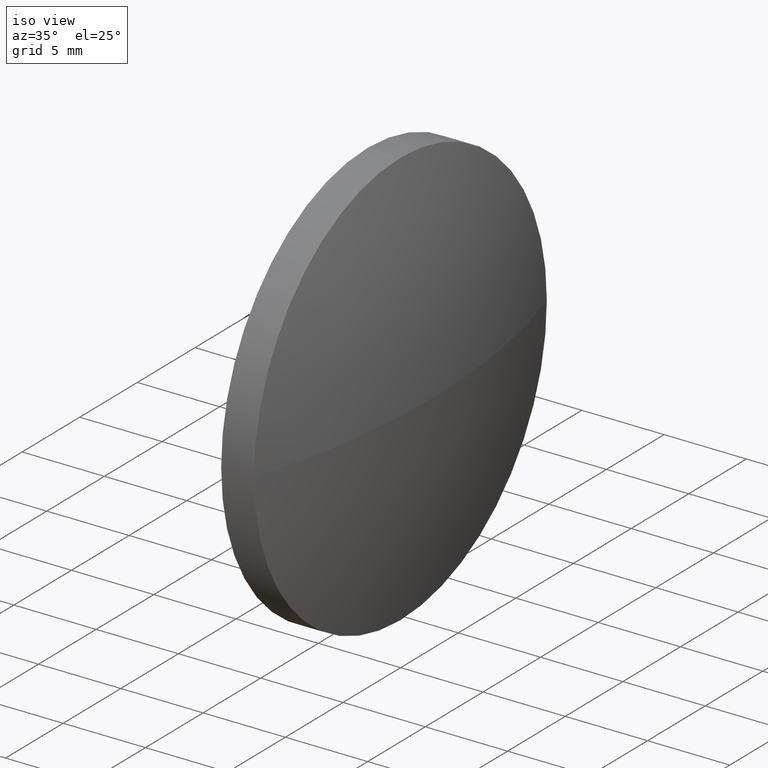
[diagram: clean part render]
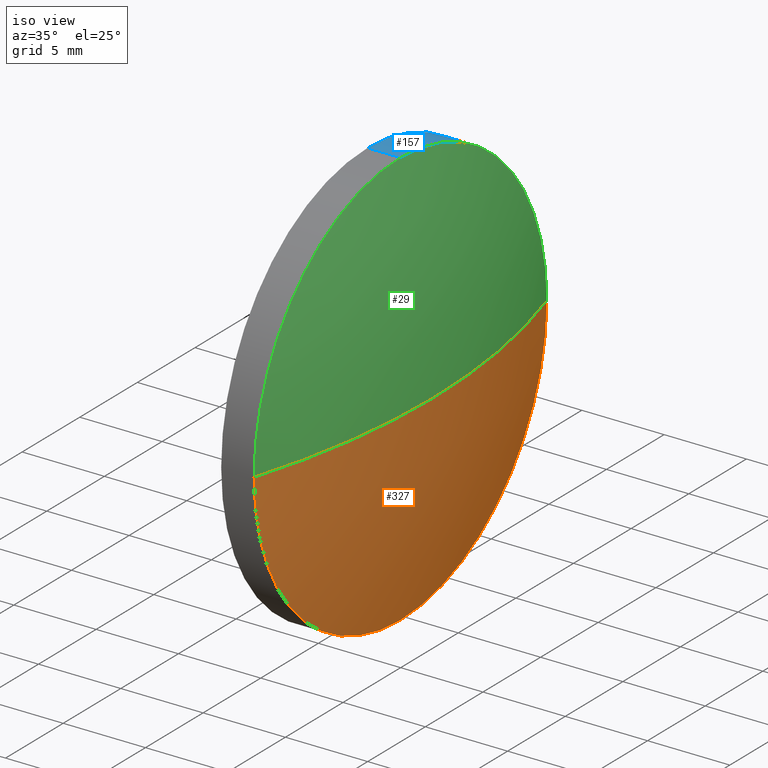
[diagram: same view with three faces highlighted in distinct colors, each labeled with its STEP entity id]
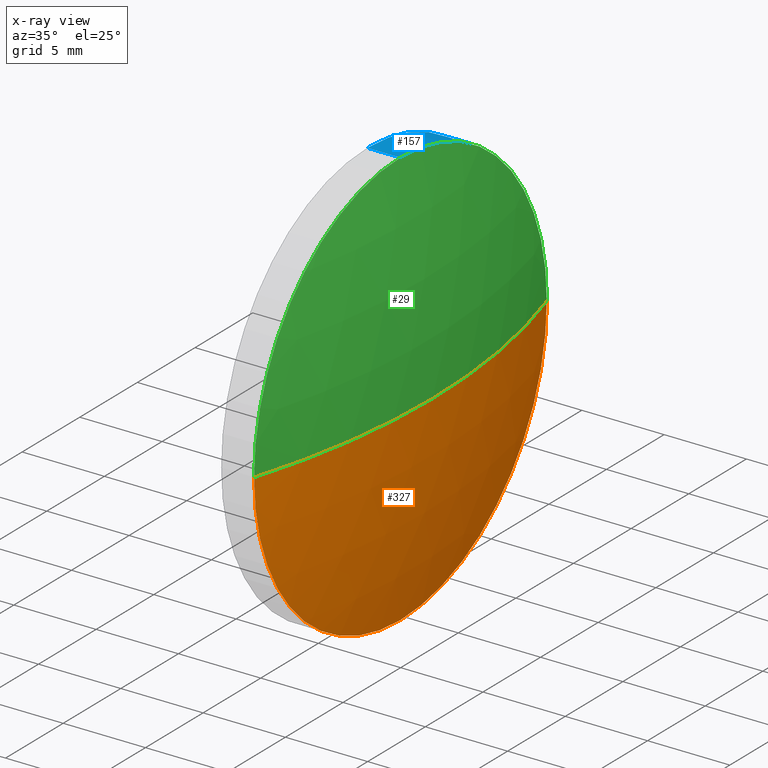
[diagram: x-ray of the same camera — body ghosted, the three highlighted faces saturated]
A machine part, iso view with three faces highlighted in distinct colors.
The next image is the same camera in x-ray (body ghosted, the three faces saturated) — at least one of them is partly hidden behind the body in this view.
Their STEP definitions:

[orange] entity #327 — the highlighted spherical surface has radius 42.3248 mm.
#6 = VERTEX_POINT ( 'NONE', #331 ) ;
#7 = DIRECTION ( 'NONE',  ( -1.000000000000000000, -0.0000000000000000000, -0.0000000000000000000 ) ) ;
#21 = SPHERICAL_SURFACE ( 'NONE', #81, 42.32476693287840400 ) ;
#22 = ORIENTED_EDGE ( 'NONE', *, *, #204, .F. ) ;
#30 = AXIS2_PLACEMENT_3D ( 'NONE', #170, #125, #259 ) ;
#37 = AXIS2_PLACEMENT_3D ( 'NONE', #197, #43, #317 ) ;
#43 = DIRECTION ( 'NONE',  ( -1.000000000000000000, -0.0000000000000000000, -0.0000000000000000000 ) ) ;
#50 = VERTEX_POINT ( 'NONE', #161 ) ;
#81 = AXIS2_PLACEMENT_3D ( 'NONE', #250, #257, #133 ) ;
#89 = FACE_OUTER_BOUND ( 'NONE', #90, .T. ) ;
#90 = EDGE_LOOP ( 'NONE', ( #216, #278, #22, #183 ) ) ;
#94 = CARTESIAN_POINT ( 'NONE',  ( 87.45786520323396500, 61.31611302318477600, 0.0000000000000000000 ) ) ;
#101 = VERTEX_POINT ( 'NONE', #94 ) ;
#113 = CARTESIAN_POINT ( 'NONE',  ( 87.45786520323396500, 48.61611302318478100, 0.0000000000000000000 ) ) ;
#125 = DIRECTION ( 'NONE',  ( -0.0000000000000000000, 0.0000000000000000000, 1.000000000000000000 ) ) ;
#131 = EDGE_CURVE ( 'NONE', #135, #50, #150, .T. ) ;
#133 = DIRECTION ( 'NONE',  ( 0.0000000000000000000, 1.000000000000000000, 0.0000000000000000000 ) ) ;
#135 = VERTEX_POINT ( 'NONE', #144 ) ;
#144 = CARTESIAN_POINT ( 'NONE',  ( 89.40818606037683500, 48.61611302318478100, 0.0000000000000000000 ) ) ;
#150 = CIRCLE ( 'NONE', #236, 42.32476693287840400 ) ;
#161 = CARTESIAN_POINT ( 'NONE',  ( 87.45786520323396500, 35.91611302318478500, -1.555301434917138400E-015 ) ) ;
#170 = CARTESIAN_POINT ( 'NONE',  ( 47.08341912749842400, 48.61611302318478100, 0.0000000000000000000 ) ) ;
#183 = ORIENTED_EDGE ( 'NONE', *, *, #226, .F. ) ;
#194 = DIRECTION ( 'NONE',  ( 0.0000000000000000000, 1.224646799147353200E-016, -1.000000000000000000 ) ) ;
#196 = CIRCLE ( 'NONE', #30, 42.32476693287840400 ) ;
#197 = CARTESIAN_POINT ( 'NONE',  ( 87.45786520323396500, 48.61611302318478100, 0.0000000000000000000 ) ) ;
#204 = EDGE_CURVE ( 'NONE', #6, #50, #231, .T. ) ;
#216 = ORIENTED_EDGE ( 'NONE', *, *, #245, .F. ) ;
#226 = EDGE_CURVE ( 'NONE', #101, #6, #270, .T. ) ;
#231 = CIRCLE ( 'NONE', #37, 12.69999999999999600 ) ;
#236 = AXIS2_PLACEMENT_3D ( 'NONE', #336, #194, #334 ) ;
#245 = EDGE_CURVE ( 'NONE', #135, #101, #196, .T. ) ;
#250 = CARTESIAN_POINT ( 'NONE',  ( 47.08341912749842400, 48.61611302318478100, 0.0000000000000000000 ) ) ;
#257 = DIRECTION ( 'NONE',  ( -0.0000000000000000000, 0.0000000000000000000, -1.000000000000000000 ) ) ;
#259 = DIRECTION ( 'NONE',  ( 1.000000000000000000, 0.0000000000000000000, 0.0000000000000000000 ) ) ;
#270 = CIRCLE ( 'NONE', #303, 12.69999999999999600 ) ;
#278 = ORIENTED_EDGE ( 'NONE', *, *, #131, .T. ) ;
#303 = AXIS2_PLACEMENT_3D ( 'NONE', #113, #7, #305 ) ;
#305 = DIRECTION ( 'NONE',  ( 0.0000000000000000000, 0.0000000000000000000, 1.000000000000000000 ) ) ;
#317 = DIRECTION ( 'NONE',  ( 0.0000000000000000000, 0.0000000000000000000, 1.000000000000000000 ) ) ;
#327 = ADVANCED_FACE ( 'NONE', ( #89 ), #21, .T. ) ;
#331 = CARTESIAN_POINT ( 'NONE',  ( 87.45786520323396500, 48.61611302318478100, -12.69999999999999600 ) ) ;
#334 = DIRECTION ( 'NONE',  ( 0.0000000000000000000, 1.000000000000000000, 1.224646799147353500E-016 ) ) ;
#336 = CARTESIAN_POINT ( 'NONE',  ( 47.08341912749842400, 48.61611302318478100, 0.0000000000000000000 ) ) ;

[blue] entity #157 — the highlighted cylindrical surface (partial cylindrical patch) has radius 12.7 mm, axis along (-1, -0, -0).
#6 = VERTEX_POINT ( 'NONE', #331 ) ;
#7 = DIRECTION ( 'NONE',  ( -1.000000000000000000, -0.0000000000000000000, -0.0000000000000000000 ) ) ;
#13 = CARTESIAN_POINT ( 'NONE',  ( 87.45786520323396500, 48.61611302318478100, 0.0000000000000000000 ) ) ;
#16 = CIRCLE ( 'NONE', #179, 12.69999999999999600 ) ;
#20 = DIRECTION ( 'NONE',  ( -1.000000000000000000, -0.0000000000000000000, -0.0000000000000000000 ) ) ;
#36 = ORIENTED_EDGE ( 'NONE', *, *, #184, .F. ) ;
#55 = CIRCLE ( 'NONE', #140, 12.69999999999999600 ) ;
#65 = VERTEX_POINT ( 'NONE', #246 ) ;
#67 = DIRECTION ( 'NONE',  ( -1.000000000000000000, -0.0000000000000000000, -0.0000000000000000000 ) ) ;
#72 = EDGE_CURVE ( 'NONE', #65, #101, #192, .T. ) ;
#85 = ORIENTED_EDGE ( 'NONE', *, *, #226, .T. ) ;
#92 = CARTESIAN_POINT ( 'NONE',  ( 85.45852234609111500, 48.61611302318478100, 12.69999999999999600 ) ) ;
#94 = CARTESIAN_POINT ( 'NONE',  ( 87.45786520323396500, 61.31611302318477600, 0.0000000000000000000 ) ) ;
#95 = DIRECTION ( 'NONE',  ( 0.0000000000000000000, 0.0000000000000000000, 1.000000000000000000 ) ) ;
#100 = CYLINDRICAL_SURFACE ( 'NONE', #318, 12.69999999999999600 ) ;
#101 = VERTEX_POINT ( 'NONE', #94 ) ;
#109 = EDGE_CURVE ( 'NONE', #224, #193, #55, .T. ) ;
#113 = CARTESIAN_POINT ( 'NONE',  ( 87.45786520323396500, 48.61611302318478100, 0.0000000000000000000 ) ) ;
#116 = CARTESIAN_POINT ( 'NONE',  ( 85.45852234609111500, 48.61611302318478100, -12.69999999999999600 ) ) ;
#117 = CARTESIAN_POINT ( 'NONE',  ( 85.45852234609111500, 48.61611302318478100, 0.0000000000000000000 ) ) ;
#121 = DIRECTION ( 'NONE',  ( -1.000000000000000000, -0.0000000000000000000, -0.0000000000000000000 ) ) ;
#122 = EDGE_CURVE ( 'NONE', #187, #224, #16, .T. ) ;
#134 = CARTESIAN_POINT ( 'NONE',  ( 85.45852234609111500, 61.31611302318476200, 0.0000000000000000000 ) ) ;
#140 = AXIS2_PLACEMENT_3D ( 'NONE', #117, #252, #168 ) ;
#142 = DIRECTION ( 'NONE',  ( -1.000000000000000000, -0.0000000000000000000, -0.0000000000000000000 ) ) ;
#157 = ADVANCED_FACE ( 'NONE', ( #265 ), #100, .T. ) ;
#159 = VECTOR ( 'NONE', #20, 1000.000000000000000 ) ;
#165 = EDGE_LOOP ( 'NONE', ( #85, #272, #320, #203, #36, #221 ) ) ;
#168 = DIRECTION ( 'NONE',  ( 0.0000000000000000000, 0.0000000000000000000, 1.000000000000000000 ) ) ;
#179 = AXIS2_PLACEMENT_3D ( 'NONE', #225, #142, #283 ) ;
#184 = EDGE_CURVE ( 'NONE', #65, #187, #247, .T. ) ;
#186 = VECTOR ( 'NONE', #310, 1000.000000000000000 ) ;
#187 = VERTEX_POINT ( 'NONE', #92 ) ;
#192 = CIRCLE ( 'NONE', #230, 12.69999999999999600 ) ;
#193 = VERTEX_POINT ( 'NONE', #116 ) ;
#203 = ORIENTED_EDGE ( 'NONE', *, *, #122, .F. ) ;
#221 = ORIENTED_EDGE ( 'NONE', *, *, #72, .T. ) ;
#222 = CARTESIAN_POINT ( 'NONE',  ( 79.30540135083715800, 48.61611302318478100, 0.0000000000000000000 ) ) ;
#224 = VERTEX_POINT ( 'NONE', #134 ) ;
#225 = CARTESIAN_POINT ( 'NONE',  ( 85.45852234609111500, 48.61611302318478100, 0.0000000000000000000 ) ) ;
#226 = EDGE_CURVE ( 'NONE', #101, #6, #270, .T. ) ;
#230 = AXIS2_PLACEMENT_3D ( 'NONE', #13, #121, #249 ) ;
#246 = CARTESIAN_POINT ( 'NONE',  ( 87.45786520323396500, 48.61611302318478100, 12.69999999999999600 ) ) ;
#247 = LINE ( 'NONE', #333, #159 ) ;
#249 = DIRECTION ( 'NONE',  ( 0.0000000000000000000, 0.0000000000000000000, 1.000000000000000000 ) ) ;
#252 = DIRECTION ( 'NONE',  ( -1.000000000000000000, -0.0000000000000000000, -0.0000000000000000000 ) ) ;
#265 = FACE_OUTER_BOUND ( 'NONE', #165, .T. ) ;
#270 = CIRCLE ( 'NONE', #303, 12.69999999999999600 ) ;
#272 = ORIENTED_EDGE ( 'NONE', *, *, #286, .T. ) ;
#282 = CARTESIAN_POINT ( 'NONE',  ( 79.30540135083715800, 48.61611302318478100, -12.69999999999999600 ) ) ;
#283 = DIRECTION ( 'NONE',  ( 0.0000000000000000000, 0.0000000000000000000, 1.000000000000000000 ) ) ;
#286 = EDGE_CURVE ( 'NONE', #6, #193, #343, .T. ) ;
#303 = AXIS2_PLACEMENT_3D ( 'NONE', #113, #7, #305 ) ;
#305 = DIRECTION ( 'NONE',  ( 0.0000000000000000000, 0.0000000000000000000, 1.000000000000000000 ) ) ;
#310 = DIRECTION ( 'NONE',  ( -1.000000000000000000, -0.0000000000000000000, -0.0000000000000000000 ) ) ;
#318 = AXIS2_PLACEMENT_3D ( 'NONE', #222, #67, #95 ) ;
#320 = ORIENTED_EDGE ( 'NONE', *, *, #109, .F. ) ;
#331 = CARTESIAN_POINT ( 'NONE',  ( 87.45786520323396500, 48.61611302318478100, -12.69999999999999600 ) ) ;
#333 = CARTESIAN_POINT ( 'NONE',  ( 79.30540135083715800, 48.61611302318478100, 12.69999999999999600 ) ) ;
#343 = LINE ( 'NONE', #282, #186 ) ;

[green] entity #29 — the highlighted spherical surface has radius 42.3248 mm.
#13 = CARTESIAN_POINT ( 'NONE',  ( 87.45786520323396500, 48.61611302318478100, 0.0000000000000000000 ) ) ;
#29 = ADVANCED_FACE ( 'NONE', ( #241 ), #151, .T. ) ;
#30 = AXIS2_PLACEMENT_3D ( 'NONE', #170, #125, #259 ) ;
#50 = VERTEX_POINT ( 'NONE', #161 ) ;
#58 = DIRECTION ( 'NONE',  ( 0.0000000000000000000, 1.000000000000000000, 0.0000000000000000000 ) ) ;
#65 = VERTEX_POINT ( 'NONE', #246 ) ;
#72 = EDGE_CURVE ( 'NONE', #65, #101, #192, .T. ) ;
#94 = CARTESIAN_POINT ( 'NONE',  ( 87.45786520323396500, 61.31611302318477600, 0.0000000000000000000 ) ) ;
#101 = VERTEX_POINT ( 'NONE', #94 ) ;
#107 = ORIENTED_EDGE ( 'NONE', *, *, #131, .F. ) ;
#121 = DIRECTION ( 'NONE',  ( -1.000000000000000000, -0.0000000000000000000, -0.0000000000000000000 ) ) ;
#125 = DIRECTION ( 'NONE',  ( -0.0000000000000000000, 0.0000000000000000000, 1.000000000000000000 ) ) ;
#131 = EDGE_CURVE ( 'NONE', #135, #50, #150, .T. ) ;
#135 = VERTEX_POINT ( 'NONE', #144 ) ;
#141 = ORIENTED_EDGE ( 'NONE', *, *, #219, .F. ) ;
#144 = CARTESIAN_POINT ( 'NONE',  ( 89.40818606037683500, 48.61611302318478100, 0.0000000000000000000 ) ) ;
#150 = CIRCLE ( 'NONE', #236, 42.32476693287840400 ) ;
#151 = SPHERICAL_SURFACE ( 'NONE', #198, 42.32476693287840400 ) ;
#161 = CARTESIAN_POINT ( 'NONE',  ( 87.45786520323396500, 35.91611302318478500, -1.555301434917138400E-015 ) ) ;
#170 = CARTESIAN_POINT ( 'NONE',  ( 47.08341912749842400, 48.61611302318478100, 0.0000000000000000000 ) ) ;
#192 = CIRCLE ( 'NONE', #230, 12.69999999999999600 ) ;
#194 = DIRECTION ( 'NONE',  ( 0.0000000000000000000, 1.224646799147353200E-016, -1.000000000000000000 ) ) ;
#196 = CIRCLE ( 'NONE', #30, 42.32476693287840400 ) ;
#198 = AXIS2_PLACEMENT_3D ( 'NONE', #217, #299, #58 ) ;
#217 = CARTESIAN_POINT ( 'NONE',  ( 47.08341912749842400, 48.61611302318478100, 0.0000000000000000000 ) ) ;
#219 = EDGE_CURVE ( 'NONE', #50, #65, #281, .T. ) ;
#230 = AXIS2_PLACEMENT_3D ( 'NONE', #13, #121, #249 ) ;
#236 = AXIS2_PLACEMENT_3D ( 'NONE', #336, #194, #334 ) ;
#241 = FACE_OUTER_BOUND ( 'NONE', #344, .T. ) ;
#245 = EDGE_CURVE ( 'NONE', #135, #101, #196, .T. ) ;
#246 = CARTESIAN_POINT ( 'NONE',  ( 87.45786520323396500, 48.61611302318478100, 12.69999999999999600 ) ) ;
#248 = DIRECTION ( 'NONE',  ( 0.0000000000000000000, 0.0000000000000000000, 1.000000000000000000 ) ) ;
#249 = DIRECTION ( 'NONE',  ( 0.0000000000000000000, 0.0000000000000000000, 1.000000000000000000 ) ) ;
#259 = DIRECTION ( 'NONE',  ( 1.000000000000000000, 0.0000000000000000000, 0.0000000000000000000 ) ) ;
#261 = ORIENTED_EDGE ( 'NONE', *, *, #245, .T. ) ;
#266 = AXIS2_PLACEMENT_3D ( 'NONE', #268, #323, #248 ) ;
#268 = CARTESIAN_POINT ( 'NONE',  ( 87.45786520323396500, 48.61611302318478100, 0.0000000000000000000 ) ) ;
#271 = ORIENTED_EDGE ( 'NONE', *, *, #72, .F. ) ;
#281 = CIRCLE ( 'NONE', #266, 12.69999999999999600 ) ;
#299 = DIRECTION ( 'NONE',  ( -0.0000000000000000000, 0.0000000000000000000, -1.000000000000000000 ) ) ;
#323 = DIRECTION ( 'NONE',  ( -1.000000000000000000, -0.0000000000000000000, -0.0000000000000000000 ) ) ;
#334 = DIRECTION ( 'NONE',  ( 0.0000000000000000000, 1.000000000000000000, 1.224646799147353500E-016 ) ) ;
#336 = CARTESIAN_POINT ( 'NONE',  ( 47.08341912749842400, 48.61611302318478100, 0.0000000000000000000 ) ) ;
#344 = EDGE_LOOP ( 'NONE', ( #107, #261, #271, #141 ) ) ;